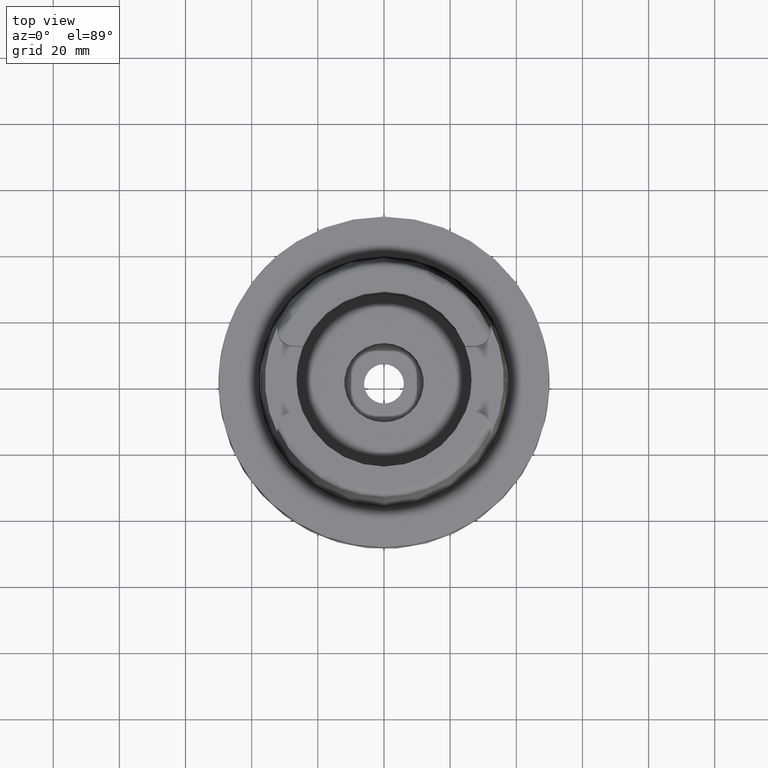
[diagram: clean part render]
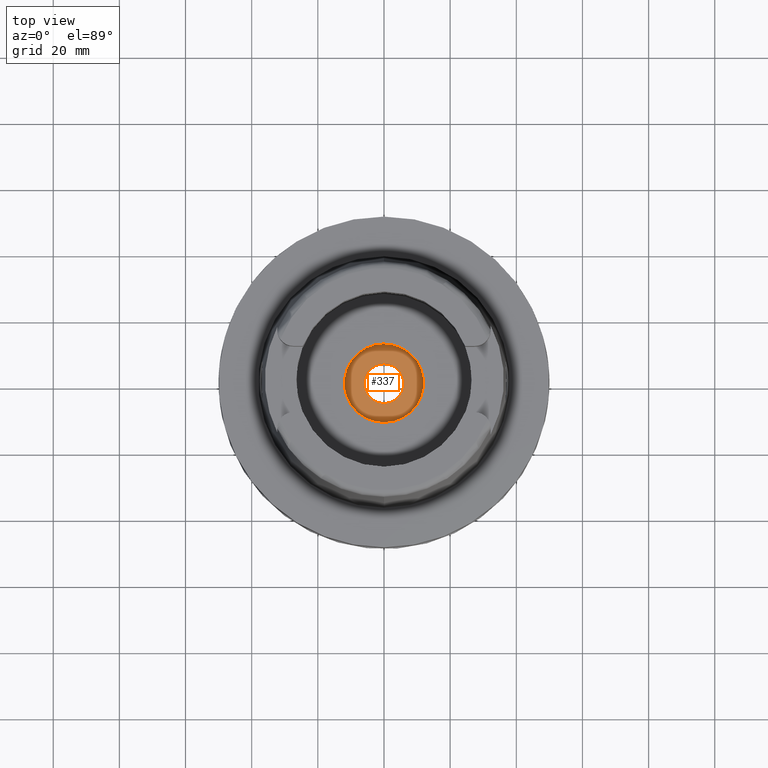
[diagram: same view with one face highlighted and labeled with its STEP entity id]
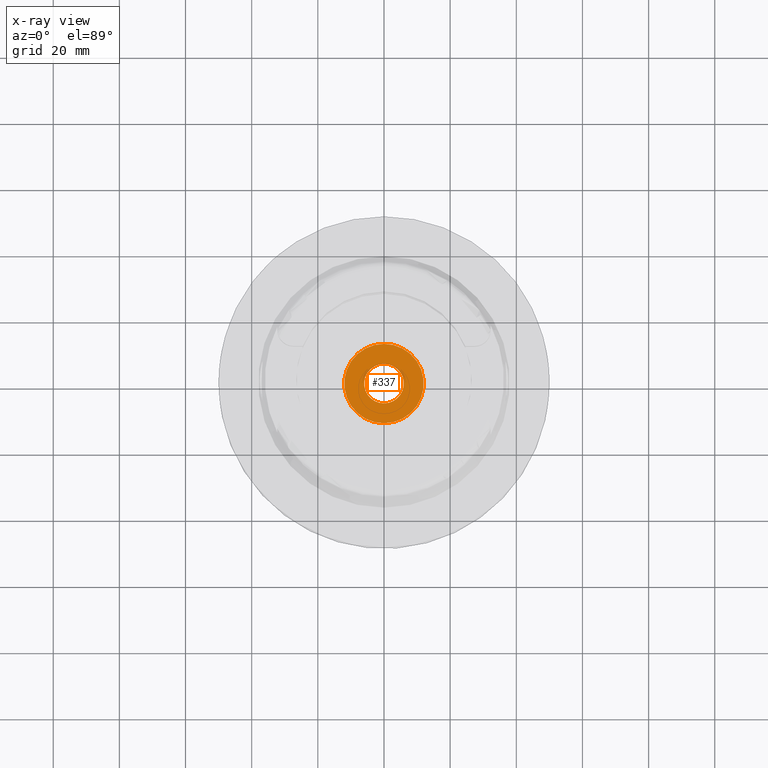
[diagram: x-ray of the same camera — body ghosted, the highlighted face saturated]
A machine part, top view. The second image highlights one B-rep face of the part: STEP entity #337.
The next image is the same camera in x-ray: the body ghosted, the highlighted face saturated — about 0% of this face is hidden behind the body in this view.
In plain terms, the highlighted planar face has unit normal (0, 0, 1).
Its self-contained STEP definition (entity closure, byte-faithful):
#33 = CARTESIAN_POINT ( 'NONE',  ( 0.0000000000000000000, -6.000000000000000000, -28.44999999999999929 ) ) ;
#139 = AXIS2_PLACEMENT_3D ( 'NONE', #2756, #3248, #4978 ) ;
#298 = ORIENTED_EDGE ( 'NONE', *, *, #2216, .F. ) ;
#337 = ADVANCED_FACE ( 'NONE', ( #2288, #5491 ), #2903, .T. ) ;
#700 = DIRECTION ( 'NONE',  ( 0.0000000000000000000, 0.0000000000000000000, -1.000000000000000000 ) ) ;
#830 = CARTESIAN_POINT ( 'NONE',  ( 0.0000000000000000000, 6.000000000000000000, -28.44999999999999929 ) ) ;
#944 = EDGE_LOOP ( 'NONE', ( #298, #4476 ) ) ;
#1357 = EDGE_CURVE ( 'NONE', #1795, #2370, #4710, .T. ) ;
#1365 = CARTESIAN_POINT ( 'NONE',  ( 0.0000000000000000000, -12.00000000000000000, -28.44999999999999929 ) ) ;
#1405 = EDGE_CURVE ( 'NONE', #4256, #1826, #2008, .T. ) ;
#1630 = CARTESIAN_POINT ( 'NONE',  ( 0.0000000000000000000, 12.00000000000000000, -28.44999999999999929 ) ) ;
#1702 = ORIENTED_EDGE ( 'NONE', *, *, #1405, .F. ) ;
#1772 = EDGE_LOOP ( 'NONE', ( #1702, #4792 ) ) ;
#1795 = VERTEX_POINT ( 'NONE', #33 ) ;
#1826 = VERTEX_POINT ( 'NONE', #1365 ) ;
#1983 = CARTESIAN_POINT ( 'NONE',  ( 0.0000000000000000000, 0.0000000000000000000, -28.44999999999999929 ) ) ;
#2008 = CIRCLE ( 'NONE', #139, 12.00000000000000000 ) ;
#2186 = AXIS2_PLACEMENT_3D ( 'NONE', #4893, #5323, #2320 ) ;
#2216 = EDGE_CURVE ( 'NONE', #2370, #1795, #2710, .T. ) ;
#2281 = CIRCLE ( 'NONE', #3991, 12.00000000000000000 ) ;
#2288 = FACE_OUTER_BOUND ( 'NONE', #1772, .T. ) ;
#2320 = DIRECTION ( 'NONE',  ( 0.0000000000000000000, 1.000000000000000000, 0.0000000000000000000 ) ) ;
#2370 = VERTEX_POINT ( 'NONE', #830 ) ;
#2697 = DIRECTION ( 'NONE',  ( 0.0000000000000000000, 0.0000000000000000000, 1.000000000000000000 ) ) ;
#2710 = CIRCLE ( 'NONE', #2186, 6.000000000000000000 ) ;
#2756 = CARTESIAN_POINT ( 'NONE',  ( 0.0000000000000000000, 0.0000000000000000000, -28.44999999999999929 ) ) ;
#2903 = PLANE ( 'NONE',  #4518 ) ;
#2954 = CARTESIAN_POINT ( 'NONE',  ( 0.0000000000000000000, 0.0000000000000000000, -28.44999999999999929 ) ) ;
#3196 = DIRECTION ( 'NONE',  ( 0.0000000000000000000, -1.000000000000000000, 0.0000000000000000000 ) ) ;
#3248 = DIRECTION ( 'NONE',  ( 0.0000000000000000000, 0.0000000000000000000, -1.000000000000000000 ) ) ;
#3506 = CARTESIAN_POINT ( 'NONE',  ( 0.0000000000000000000, 0.0000000000000000000, -28.44999999999999929 ) ) ;
#3748 = DIRECTION ( 'NONE',  ( 0.0000000000000000000, 0.0000000000000000000, 1.000000000000000000 ) ) ;
#3891 = AXIS2_PLACEMENT_3D ( 'NONE', #1983, #2697, #3196 ) ;
#3991 = AXIS2_PLACEMENT_3D ( 'NONE', #2954, #700, #4572 ) ;
#4256 = VERTEX_POINT ( 'NONE', #1630 ) ;
#4476 = ORIENTED_EDGE ( 'NONE', *, *, #1357, .F. ) ;
#4518 = AXIS2_PLACEMENT_3D ( 'NONE', #3506, #3748, #5248 ) ;
#4572 = DIRECTION ( 'NONE',  ( 0.0000000000000000000, -1.000000000000000000, 0.0000000000000000000 ) ) ;
#4710 = CIRCLE ( 'NONE', #3891, 6.000000000000000000 ) ;
#4792 = ORIENTED_EDGE ( 'NONE', *, *, #5183, .F. ) ;
#4893 = CARTESIAN_POINT ( 'NONE',  ( 0.0000000000000000000, 0.0000000000000000000, -28.44999999999999929 ) ) ;
#4978 = DIRECTION ( 'NONE',  ( 0.0000000000000000000, 1.000000000000000000, 0.0000000000000000000 ) ) ;
#5183 = EDGE_CURVE ( 'NONE', #1826, #4256, #2281, .T. ) ;
#5248 = DIRECTION ( 'NONE',  ( 1.000000000000000000, 0.0000000000000000000, 0.0000000000000000000 ) ) ;
#5323 = DIRECTION ( 'NONE',  ( 0.0000000000000000000, 0.0000000000000000000, 1.000000000000000000 ) ) ;
#5491 = FACE_BOUND ( 'NONE', #944, .T. ) ;